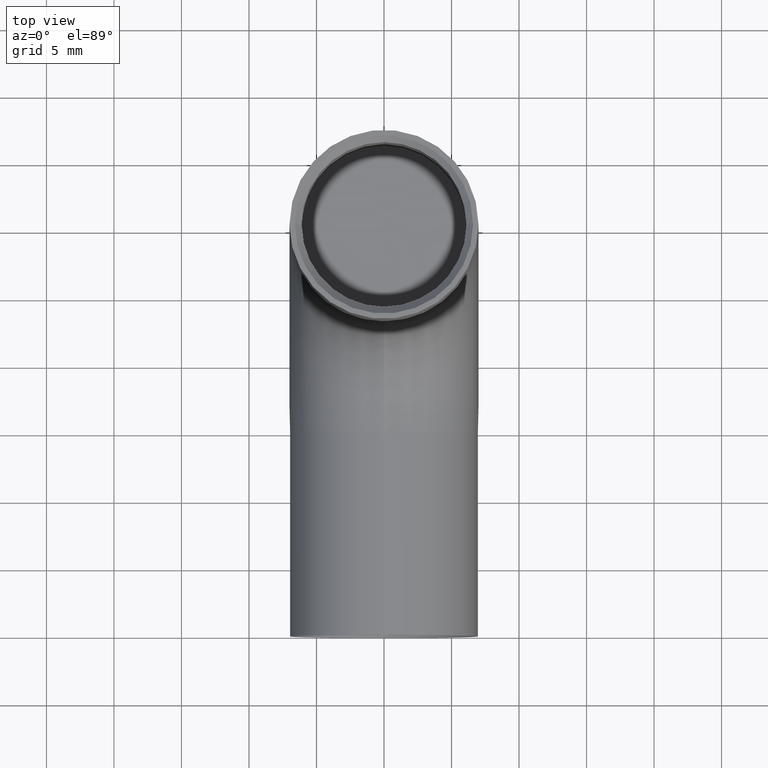
[diagram: clean part render]
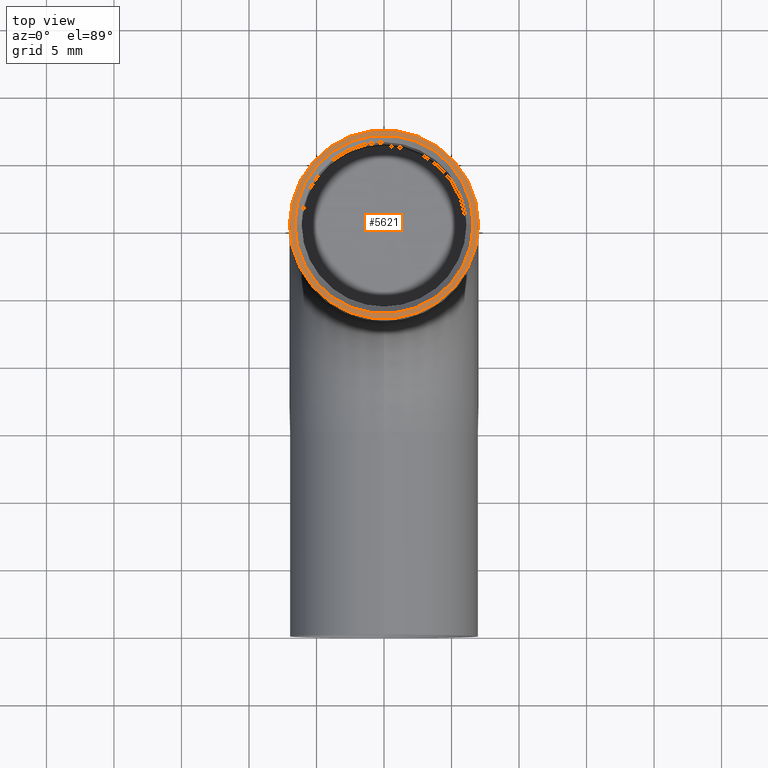
[diagram: same view with one face highlighted and labeled with its STEP entity id]
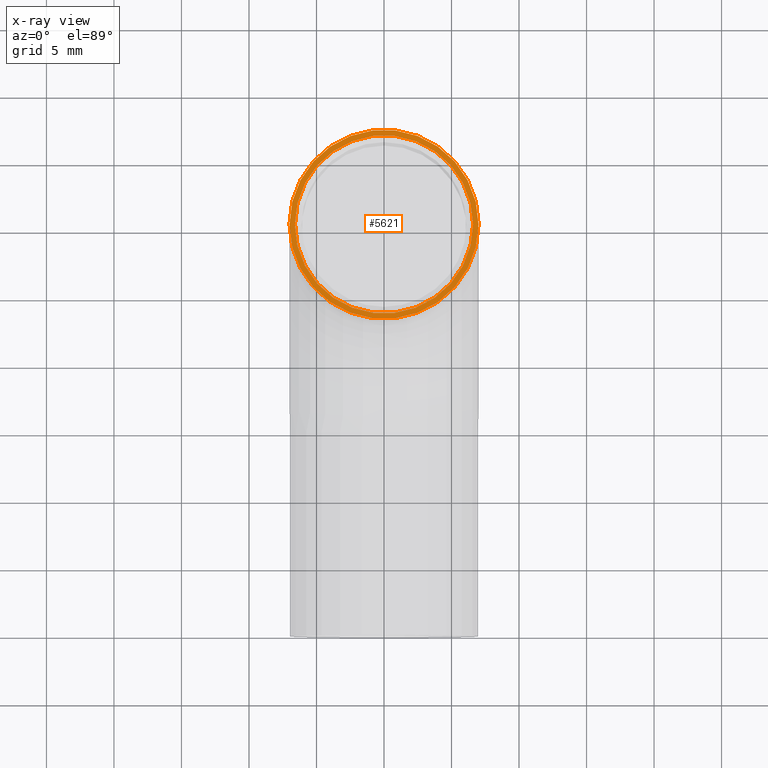
[diagram: x-ray of the same camera — body ghosted, the highlighted face saturated]
A machine part, top view. The second image highlights one B-rep face of the part: STEP entity #5621.
The next image is the same camera in x-ray: the body ghosted, the highlighted face saturated — about 0% of this face is hidden behind the body in this view.
In plain terms, the highlighted planar face has unit normal (0, -0, 1).
Its self-contained STEP definition (entity closure, byte-faithful):
#117 = DIRECTION ( 'NONE',  ( 0.000000000000000000, -1.608122649676636601E-16, 1.000000000000000000 ) ) ;
#1695 = AXIS2_PLACEMENT_3D ( 'NONE', #3708, #5804, #10026 ) ;
#1757 = VERTEX_POINT ( 'NONE', #8858 ) ;
#1850 = DIRECTION ( 'NONE',  ( 0.000000000000000000, -1.608122649676636601E-16, 1.000000000000000000 ) ) ;
#1863 = VERTEX_POINT ( 'NONE', #12280 ) ;
#2889 = CARTESIAN_POINT ( 'NONE',  ( 0.000000000000000000, 29.99999999999999645, 30.00000000000000000 ) ) ;
#3019 = EDGE_LOOP ( 'NONE', ( #7310, #5859 ) ) ;
#3237 = CARTESIAN_POINT ( 'NONE',  ( 0.000000000000000000, 29.99999999999999645, 30.00000000000000000 ) ) ;
#3529 = ORIENTED_EDGE ( 'NONE', *, *, #10377, .T. ) ;
#3635 = CIRCLE ( 'NONE', #10354, 6.600000000000004974 ) ;
#3708 = CARTESIAN_POINT ( 'NONE',  ( 0.000000000000000000, 29.99999999999999645, 30.00000000000000000 ) ) ;
#3846 = DIRECTION ( 'NONE',  ( -0.000000000000000000, 1.608122649676636601E-16, -1.000000000000000000 ) ) ;
#4017 = CARTESIAN_POINT ( 'NONE',  ( 0.000000000000000000, 29.99999999999999645, 30.00000000000000000 ) ) ;
#4099 = CIRCLE ( 'NONE', #12793, 6.999999999999999112 ) ;
#4313 = VERTEX_POINT ( 'NONE', #6075 ) ;
#4721 = DIRECTION ( 'NONE',  ( 0.000000000000000000, -1.000000000000000000, 0.000000000000000000 ) ) ;
#5123 = DIRECTION ( 'NONE',  ( -0.000000000000000000, 1.608122649676636601E-16, -1.000000000000000000 ) ) ;
#5242 = DIRECTION ( 'NONE',  ( 0.000000000000000000, -1.000000000000000000, 0.000000000000000000 ) ) ;
#5621 = ADVANCED_FACE ( 'NONE', ( #11748, #8755 ), #12266, .T. ) ;
#5804 = DIRECTION ( 'NONE',  ( 0.000000000000000000, -1.608122649676636601E-16, 1.000000000000000000 ) ) ;
#5859 = ORIENTED_EDGE ( 'NONE', *, *, #8619, .T. ) ;
#6075 = CARTESIAN_POINT ( 'NONE',  ( -7.000000000000000000, 29.99999999999999645, 30.00000000000000000 ) ) ;
#6447 = AXIS2_PLACEMENT_3D ( 'NONE', #3237, #117, #10319 ) ;
#6497 = EDGE_LOOP ( 'NONE', ( #3529, #10059 ) ) ;
#7242 = CARTESIAN_POINT ( 'NONE',  ( 0.000000000000000000, 29.99999999999999645, 30.00000000000000000 ) ) ;
#7310 = ORIENTED_EDGE ( 'NONE', *, *, #12546, .T. ) ;
#7436 = CARTESIAN_POINT ( 'NONE',  ( -6.600000000000004974, 29.99999999999999645, 30.00000000000000000 ) ) ;
#7837 = CIRCLE ( 'NONE', #9674, 6.600000000000004974 ) ;
#8238 = VERTEX_POINT ( 'NONE', #7436 ) ;
#8619 = EDGE_CURVE ( 'NONE', #8238, #1863, #3635, .T. ) ;
#8755 = FACE_OUTER_BOUND ( 'NONE', #6497, .T. ) ;
#8858 = CARTESIAN_POINT ( 'NONE',  ( 7.000000000000000000, 29.99999999999999645, 30.00000000000000000 ) ) ;
#9468 = EDGE_CURVE ( 'NONE', #4313, #1757, #4099, .T. ) ;
#9674 = AXIS2_PLACEMENT_3D ( 'NONE', #4017, #3846, #9949 ) ;
#9908 = CIRCLE ( 'NONE', #1695, 6.999999999999999112 ) ;
#9949 = DIRECTION ( 'NONE',  ( 0.000000000000000000, -1.000000000000000000, 0.000000000000000000 ) ) ;
#10026 = DIRECTION ( 'NONE',  ( 0.000000000000000000, -1.000000000000000000, 0.000000000000000000 ) ) ;
#10059 = ORIENTED_EDGE ( 'NONE', *, *, #9468, .T. ) ;
#10319 = DIRECTION ( 'NONE',  ( 0.000000000000000000, -1.000000000000000000, -1.608122649676636601E-16 ) ) ;
#10354 = AXIS2_PLACEMENT_3D ( 'NONE', #7242, #5123, #5242 ) ;
#10377 = EDGE_CURVE ( 'NONE', #1757, #4313, #9908, .T. ) ;
#11748 = FACE_BOUND ( 'NONE', #3019, .T. ) ;
#12266 = PLANE ( 'NONE',  #6447 ) ;
#12280 = CARTESIAN_POINT ( 'NONE',  ( 6.600000000000004974, 29.99999999999999645, 30.00000000000000000 ) ) ;
#12546 = EDGE_CURVE ( 'NONE', #1863, #8238, #7837, .T. ) ;
#12793 = AXIS2_PLACEMENT_3D ( 'NONE', #2889, #1850, #4721 ) ;